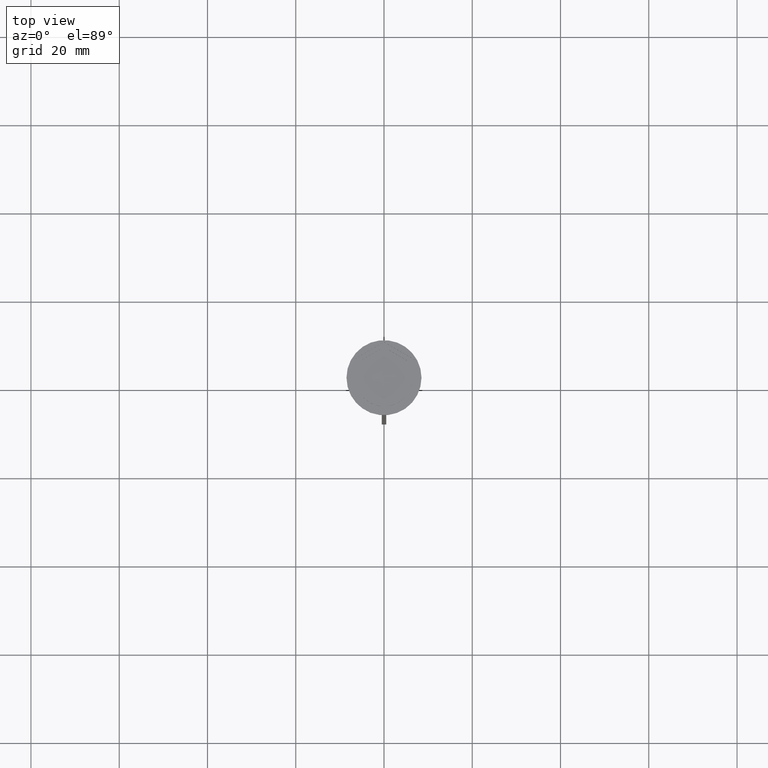
[diagram: clean part render]
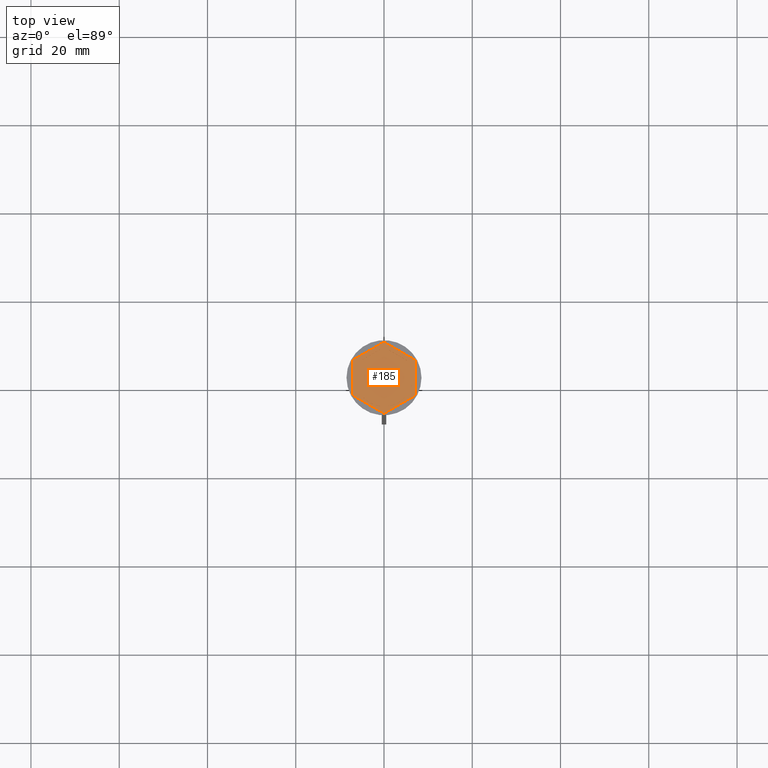
[diagram: same view with one face highlighted and labeled with its STEP entity id]
A machine part, top view. The second image highlights one B-rep face of the part: STEP entity #185.
In plain terms, the highlighted planar face has unit normal (0, 0, 1).
Its self-contained STEP definition (entity closure, byte-faithful):
#15 = ORIENTED_EDGE ( 'NONE', *, *, #1652, .T. ) ;
#23 = VECTOR ( 'NONE', #1169, 1000.000000000000000 ) ;
#24 = VECTOR ( 'NONE', #1888, 1000.000000000000114 ) ;
#42 = DIRECTION ( 'NONE',  ( 0.000000000000000000, 0.000000000000000000, 1.000000000000000000 ) ) ;
#75 = ORIENTED_EDGE ( 'NONE', *, *, #365, .F. ) ;
#85 = CIRCLE ( 'NONE', #1725, 6.500000000000000888 ) ;
#88 = LINE ( 'NONE', #845, #1105 ) ;
#93 = CARTESIAN_POINT ( 'NONE',  ( 2.174016704710901386E-15, -8.082903768654762899, -1.000000000000000000 ) ) ;
#139 = CIRCLE ( 'NONE', #1877, 6.500000000000000888 ) ;
#165 = DIRECTION ( 'NONE',  ( 0.000000000000000000, 0.000000000000000000, 1.000000000000000000 ) ) ;
#185 = ADVANCED_FACE ( 'NONE', ( #1314, #956, #2059, #1512, #379, #1151, #1141 ), #1895, .T. ) ;
#198 = DIRECTION ( 'NONE',  ( -0.8660254037844387076, -0.4999999999999998890, 0.000000000000000000 ) ) ;
#225 = CARTESIAN_POINT ( 'NONE',  ( 0.000000000000000000, 0.000000000000000000, -1.000000000000000000 ) ) ;
#259 = VERTEX_POINT ( 'NONE', #1189 ) ;
#276 = VERTEX_POINT ( 'NONE', #657 ) ;
#286 = CARTESIAN_POINT ( 'NONE',  ( -7.000000000000000888, 4.041451884327381450, -1.000000000000000000 ) ) ;
#298 = EDGE_CURVE ( 'NONE', #1826, #259, #1405, .T. ) ;
#323 = CARTESIAN_POINT ( 'NONE',  ( 5.999999999999999112, -2.500000000000003109, -1.000000000000000888 ) ) ;
#338 = VERTEX_POINT ( 'NONE', #1782 ) ;
#340 = DIRECTION ( 'NONE',  ( 0.000000000000000000, 0.000000000000000000, 1.000000000000000000 ) ) ;
#343 = CARTESIAN_POINT ( 'NONE',  ( -6.000000000000000000, -3.464101615137754830, -1.000000000000000888 ) ) ;
#354 = CARTESIAN_POINT ( 'NONE',  ( 5.999999999999999112, -3.464101615137755719, -1.000000000000000888 ) ) ;
#365 = EDGE_CURVE ( 'NONE', #1945, #601, #819, .T. ) ;
#367 = VECTOR ( 'NONE', #1836, 1000.000000000000000 ) ;
#370 = ORIENTED_EDGE ( 'NONE', *, *, #2250, .T. ) ;
#379 = FACE_BOUND ( 'NONE', #1608, .T. ) ;
#380 = EDGE_LOOP ( 'NONE', ( #1833, #1794 ) ) ;
#398 = DIRECTION ( 'NONE',  ( 0.000000000000000000, 0.000000000000000000, 1.000000000000000000 ) ) ;
#412 = CARTESIAN_POINT ( 'NONE',  ( -7.000000000000000888, 4.041451884327381450, -1.000000000000000000 ) ) ;
#419 = CARTESIAN_POINT ( 'NONE',  ( -7.000000000000000888, -4.041451884327381450, -1.000000000000000000 ) ) ;
#420 = LINE ( 'NONE', #1911, #1259 ) ;
#439 = CARTESIAN_POINT ( 'NONE',  ( -6.500000000000000888, 0.000000000000000000, -1.000000000000000000 ) ) ;
#470 = VERTEX_POINT ( 'NONE', #286 ) ;
#478 = ORIENTED_EDGE ( 'NONE', *, *, #1990, .F. ) ;
#506 = LINE ( 'NONE', #1257, #970 ) ;
#520 = CARTESIAN_POINT ( 'NONE',  ( 0.000000000000000000, 0.000000000000000000, -1.000000000000000000 ) ) ;
#530 = DIRECTION ( 'NONE',  ( 0.8660254037844388186, -0.4999999999999998335, 0.000000000000000000 ) ) ;
#537 = DIRECTION ( 'NONE',  ( 1.000000000000000000, 0.000000000000000000, 0.000000000000000000 ) ) ;
#560 = EDGE_CURVE ( 'NONE', #1675, #1826, #590, .T. ) ;
#561 = EDGE_CURVE ( 'NONE', #1624, #2341, #1832, .T. ) ;
#570 = LINE ( 'NONE', #1083, #1224 ) ;
#590 = CIRCLE ( 'NONE', #2074, 6.500000000000000888 ) ;
#601 = VERTEX_POINT ( 'NONE', #2299 ) ;
#611 = CARTESIAN_POINT ( 'NONE',  ( 7.000000000000000000, -4.041451884327381450, -1.000000000000000000 ) ) ;
#634 = VERTEX_POINT ( 'NONE', #2372 ) ;
#638 = EDGE_LOOP ( 'NONE', ( #1640, #1655 ) ) ;
#657 = CARTESIAN_POINT ( 'NONE',  ( -5.165063509461097269, -3.946152422706633356, -1.000000000000000888 ) ) ;
#667 = DIRECTION ( 'NONE',  ( 1.000000000000000000, 0.000000000000000000, 0.000000000000000000 ) ) ;
#677 = VERTEX_POINT ( 'NONE', #1357 ) ;
#683 = EDGE_CURVE ( 'NONE', #677, #1788, #420, .T. ) ;
#712 = DIRECTION ( 'NONE',  ( 0.000000000000000000, 0.000000000000000000, 1.000000000000000000 ) ) ;
#715 = LINE ( 'NONE', #343, #367 ) ;
#730 = ORIENTED_EDGE ( 'NONE', *, *, #298, .F. ) ;
#760 = EDGE_CURVE ( 'NONE', #601, #1945, #506, .T. ) ;
#816 = AXIS2_PLACEMENT_3D ( 'NONE', #225, #42, #1323 ) ;
#819 = CIRCLE ( 'NONE', #1685, 6.500000000000000888 ) ;
#821 = LINE ( 'NONE', #611, #2382 ) ;
#822 = CARTESIAN_POINT ( 'NONE',  ( 5.165063509461097269, 3.946152422706633356, -1.000000000000000888 ) ) ;
#840 = EDGE_CURVE ( 'NONE', #2341, #634, #821, .T. ) ;
#844 = ORIENTED_EDGE ( 'NONE', *, *, #1395, .F. ) ;
#845 = CARTESIAN_POINT ( 'NONE',  ( 0.000000000000000000, 8.082903768654762899, -1.000000000000000000 ) ) ;
#878 = DIRECTION ( 'NONE',  ( -2.503857664561932376E-16, -1.000000000000000000, 0.000000000000000000 ) ) ;
#880 = ORIENTED_EDGE ( 'NONE', *, *, #2084, .T. ) ;
#884 = EDGE_CURVE ( 'NONE', #1318, #1659, #85, .T. ) ;
#899 = CARTESIAN_POINT ( 'NONE',  ( 2.174016704710901386E-15, -8.082903768654762899, -1.000000000000000000 ) ) ;
#901 = EDGE_CURVE ( 'NONE', #276, #2225, #1127, .T. ) ;
#913 = CARTESIAN_POINT ( 'NONE',  ( 0.000000000000000000, 0.000000000000000000, -1.000000000000000000 ) ) ;
#935 = ORIENTED_EDGE ( 'NONE', *, *, #561, .T. ) ;
#953 = CARTESIAN_POINT ( 'NONE',  ( 0.8349364905389003999, 6.446152422706633800, -1.000000000000000888 ) ) ;
#956 = FACE_BOUND ( 'NONE', #638, .T. ) ;
#970 = VECTOR ( 'NONE', #2004, 1000.000000000000000 ) ;
#994 = EDGE_CURVE ( 'NONE', #1659, #1318, #1444, .T. ) ;
#1033 = ORIENTED_EDGE ( 'NONE', *, *, #2013, .F. ) ;
#1034 = ORIENTED_EDGE ( 'NONE', *, *, #683, .F. ) ;
#1038 = DIRECTION ( 'NONE',  ( 1.000000000000000000, 0.000000000000000000, 0.000000000000000000 ) ) ;
#1043 = VERTEX_POINT ( 'NONE', #953 ) ;
#1074 = DIRECTION ( 'NONE',  ( 1.000000000000000000, 0.000000000000000000, 0.000000000000000000 ) ) ;
#1083 = CARTESIAN_POINT ( 'NONE',  ( 6.000000000000000888, 3.464101615137753942, -1.000000000000000888 ) ) ;
#1085 = EDGE_LOOP ( 'NONE', ( #1744, #1034 ) ) ;
#1105 = VECTOR ( 'NONE', #1991, 1000.000000000000114 ) ;
#1127 = CIRCLE ( 'NONE', #1336, 6.500000000000000888 ) ;
#1133 = AXIS2_PLACEMENT_3D ( 'NONE', #913, #398, #1886 ) ;
#1137 = CIRCLE ( 'NONE', #1571, 6.500000000000000888 ) ;
#1139 = CARTESIAN_POINT ( 'NONE',  ( 7.000000000000000000, -4.041451884327381450, -1.000000000000000000 ) ) ;
#1141 = FACE_OUTER_BOUND ( 'NONE', #1498, .T. ) ;
#1144 = LINE ( 'NONE', #419, #24 ) ;
#1148 = EDGE_CURVE ( 'NONE', #1788, #677, #1847, .T. ) ;
#1151 = FACE_BOUND ( 'NONE', #1988, .T. ) ;
#1169 = DIRECTION ( 'NONE',  ( 0.000000000000000000, -1.000000000000000000, 0.000000000000000000 ) ) ;
#1189 = CARTESIAN_POINT ( 'NONE',  ( -6.000000000000000000, 2.500000000000001776, -1.000000000000000888 ) ) ;
#1206 = CARTESIAN_POINT ( 'NONE',  ( -0.8349364905389056180, -6.446152422706632024, -1.000000000000000888 ) ) ;
#1224 = VECTOR ( 'NONE', #530, 999.9999999999998863 ) ;
#1235 = CARTESIAN_POINT ( 'NONE',  ( 0.000000000000000000, 0.000000000000000000, -1.000000000000000000 ) ) ;
#1236 = VERTEX_POINT ( 'NONE', #1741 ) ;
#1257 = CARTESIAN_POINT ( 'NONE',  ( 0.000000000000000000, 6.928203230275507885, -1.000000000000000888 ) ) ;
#1259 = VECTOR ( 'NONE', #198, 1000.000000000000000 ) ;
#1272 = CARTESIAN_POINT ( 'NONE',  ( 0.000000000000000000, 0.000000000000000000, -1.000000000000000000 ) ) ;
#1282 = VERTEX_POINT ( 'NONE', #822 ) ;
#1301 = VECTOR ( 'NONE', #878, 1000.000000000000000 ) ;
#1308 = DIRECTION ( 'NONE',  ( 1.073081856240827703E-16, 1.000000000000000000, 0.000000000000000000 ) ) ;
#1314 = FACE_BOUND ( 'NONE', #1423, .T. ) ;
#1318 = VERTEX_POINT ( 'NONE', #323 ) ;
#1323 = DIRECTION ( 'NONE',  ( 1.000000000000000000, 0.000000000000000000, -0.000000000000000000 ) ) ;
#1336 = AXIS2_PLACEMENT_3D ( 'NONE', #1235, #712, #1038 ) ;
#1357 = CARTESIAN_POINT ( 'NONE',  ( 5.165063509461097269, -3.946152422706631580, -1.000000000000000888 ) ) ;
#1395 = EDGE_CURVE ( 'NONE', #259, #1675, #139, .T. ) ;
#1405 = LINE ( 'NONE', #2295, #1601 ) ;
#1423 = EDGE_LOOP ( 'NONE', ( #1033, #478 ) ) ;
#1437 = DIRECTION ( 'NONE',  ( -0.8660254037844387076, 0.4999999999999998890, 0.000000000000000000 ) ) ;
#1444 = LINE ( 'NONE', #354, #1301 ) ;
#1455 = DIRECTION ( 'NONE',  ( 0.000000000000000000, 0.000000000000000000, 1.000000000000000000 ) ) ;
#1467 = DIRECTION ( 'NONE',  ( 0.000000000000000000, 0.000000000000000000, 1.000000000000000000 ) ) ;
#1468 = DIRECTION ( 'NONE',  ( 0.8660254037844384856, 0.5000000000000001110, 0.000000000000000000 ) ) ;
#1498 = EDGE_LOOP ( 'NONE', ( #370, #1621, #15, #880, #935, #2015 ) ) ;
#1512 = FACE_BOUND ( 'NONE', #380, .T. ) ;
#1571 = AXIS2_PLACEMENT_3D ( 'NONE', #2030, #165, #1658 ) ;
#1601 = VECTOR ( 'NONE', #2124, 1000.000000000000000 ) ;
#1603 = VECTOR ( 'NONE', #1468, 1000.000000000000227 ) ;
#1608 = EDGE_LOOP ( 'NONE', ( #844, #730, #1796 ) ) ;
#1621 = ORIENTED_EDGE ( 'NONE', *, *, #2183, .T. ) ;
#1624 = VERTEX_POINT ( 'NONE', #93 ) ;
#1636 = DIRECTION ( 'NONE',  ( 0.000000000000000000, 0.000000000000000000, 1.000000000000000000 ) ) ;
#1640 = ORIENTED_EDGE ( 'NONE', *, *, #884, .F. ) ;
#1648 = CARTESIAN_POINT ( 'NONE',  ( 0.000000000000000000, 0.000000000000000000, -1.000000000000000000 ) ) ;
#1652 = EDGE_CURVE ( 'NONE', #470, #338, #2119, .T. ) ;
#1655 = ORIENTED_EDGE ( 'NONE', *, *, #994, .F. ) ;
#1658 = DIRECTION ( 'NONE',  ( 1.000000000000000000, 0.000000000000000000, 0.000000000000000000 ) ) ;
#1659 = VERTEX_POINT ( 'NONE', #1747 ) ;
#1675 = VERTEX_POINT ( 'NONE', #439 ) ;
#1685 = AXIS2_PLACEMENT_3D ( 'NONE', #2009, #1455, #2201 ) ;
#1725 = AXIS2_PLACEMENT_3D ( 'NONE', #1648, #1636, #537 ) ;
#1741 = CARTESIAN_POINT ( 'NONE',  ( 0.000000000000000000, 8.082903768654762899, -1.000000000000000000 ) ) ;
#1744 = ORIENTED_EDGE ( 'NONE', *, *, #1148, .F. ) ;
#1747 = CARTESIAN_POINT ( 'NONE',  ( 6.000000000000000888, 2.500000000000000444, -1.000000000000000888 ) ) ;
#1782 = CARTESIAN_POINT ( 'NONE',  ( -7.000000000000000888, -4.041451884327381450, -1.000000000000000000 ) ) ;
#1788 = VERTEX_POINT ( 'NONE', #1995 ) ;
#1794 = ORIENTED_EDGE ( 'NONE', *, *, #2282, .F. ) ;
#1796 = ORIENTED_EDGE ( 'NONE', *, *, #560, .F. ) ;
#1797 = LINE ( 'NONE', #2166, #2352 ) ;
#1826 = VERTEX_POINT ( 'NONE', #2358 ) ;
#1832 = LINE ( 'NONE', #899, #1603 ) ;
#1833 = ORIENTED_EDGE ( 'NONE', *, *, #901, .F. ) ;
#1836 = DIRECTION ( 'NONE',  ( -0.8660254037844385966, 0.5000000000000001110, 0.000000000000000000 ) ) ;
#1847 = CIRCLE ( 'NONE', #1133, 6.500000000000000888 ) ;
#1877 = AXIS2_PLACEMENT_3D ( 'NONE', #520, #1467, #667 ) ;
#1885 = ORIENTED_EDGE ( 'NONE', *, *, #760, .F. ) ;
#1886 = DIRECTION ( 'NONE',  ( 1.000000000000000000, 0.000000000000000000, 0.000000000000000000 ) ) ;
#1888 = DIRECTION ( 'NONE',  ( 0.8660254037844387076, -0.4999999999999997224, 0.000000000000000000 ) ) ;
#1895 = PLANE ( 'NONE',  #816 ) ;
#1911 = CARTESIAN_POINT ( 'NONE',  ( -1.301042606982605321E-15, -6.928203230275509661, -1.000000000000000888 ) ) ;
#1945 = VERTEX_POINT ( 'NONE', #2381 ) ;
#1988 = EDGE_LOOP ( 'NONE', ( #75, #1885 ) ) ;
#1990 = EDGE_CURVE ( 'NONE', #1043, #1282, #570, .T. ) ;
#1991 = DIRECTION ( 'NONE',  ( -0.8660254037844385966, -0.4999999999999999445, 0.000000000000000000 ) ) ;
#1995 = CARTESIAN_POINT ( 'NONE',  ( 0.8349364905389008440, -6.446152422706633800, -1.000000000000000888 ) ) ;
#2004 = DIRECTION ( 'NONE',  ( 0.8660254037844385966, 0.5000000000000001110, -0.000000000000000000 ) ) ;
#2009 = CARTESIAN_POINT ( 'NONE',  ( 0.000000000000000000, 0.000000000000000000, -1.000000000000000000 ) ) ;
#2013 = EDGE_CURVE ( 'NONE', #1282, #1043, #1137, .T. ) ;
#2015 = ORIENTED_EDGE ( 'NONE', *, *, #840, .T. ) ;
#2030 = CARTESIAN_POINT ( 'NONE',  ( 0.000000000000000000, 0.000000000000000000, -1.000000000000000000 ) ) ;
#2059 = FACE_BOUND ( 'NONE', #1085, .T. ) ;
#2074 = AXIS2_PLACEMENT_3D ( 'NONE', #1272, #340, #1074 ) ;
#2084 = EDGE_CURVE ( 'NONE', #338, #1624, #1144, .T. ) ;
#2119 = LINE ( 'NONE', #412, #23 ) ;
#2124 = DIRECTION ( 'NONE',  ( 0.000000000000000000, 1.000000000000000000, 0.000000000000000000 ) ) ;
#2166 = CARTESIAN_POINT ( 'NONE',  ( 7.000000000000000888, 4.041451884327382338, -1.000000000000000000 ) ) ;
#2183 = EDGE_CURVE ( 'NONE', #1236, #470, #88, .T. ) ;
#2201 = DIRECTION ( 'NONE',  ( 1.000000000000000000, 0.000000000000000000, 0.000000000000000000 ) ) ;
#2225 = VERTEX_POINT ( 'NONE', #1206 ) ;
#2250 = EDGE_CURVE ( 'NONE', #634, #1236, #1797, .T. ) ;
#2282 = EDGE_CURVE ( 'NONE', #2225, #276, #715, .T. ) ;
#2295 = CARTESIAN_POINT ( 'NONE',  ( -6.000000000000000000, 3.464101615137752166, -1.000000000000000888 ) ) ;
#2299 = CARTESIAN_POINT ( 'NONE',  ( -5.165063509461101710, 3.946152422706626250, -1.000000000000000888 ) ) ;
#2341 = VERTEX_POINT ( 'NONE', #1139 ) ;
#2352 = VECTOR ( 'NONE', #1437, 1000.000000000000114 ) ;
#2358 = CARTESIAN_POINT ( 'NONE',  ( -6.000000000000000000, -2.500000000000001776, -1.000000000000000888 ) ) ;
#2372 = CARTESIAN_POINT ( 'NONE',  ( 7.000000000000000888, 4.041451884327382338, -1.000000000000000000 ) ) ;
#2381 = CARTESIAN_POINT ( 'NONE',  ( -0.8349364905388981795, 6.446152422706633800, -1.000000000000000888 ) ) ;
#2382 = VECTOR ( 'NONE', #1308, 1000.000000000000000 ) ;